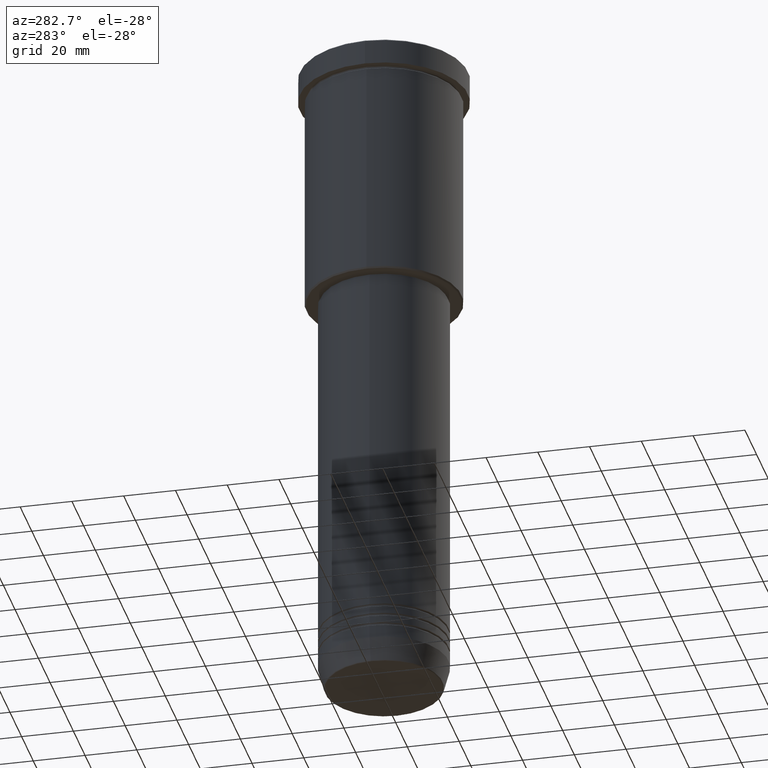
[diagram: clean part render]
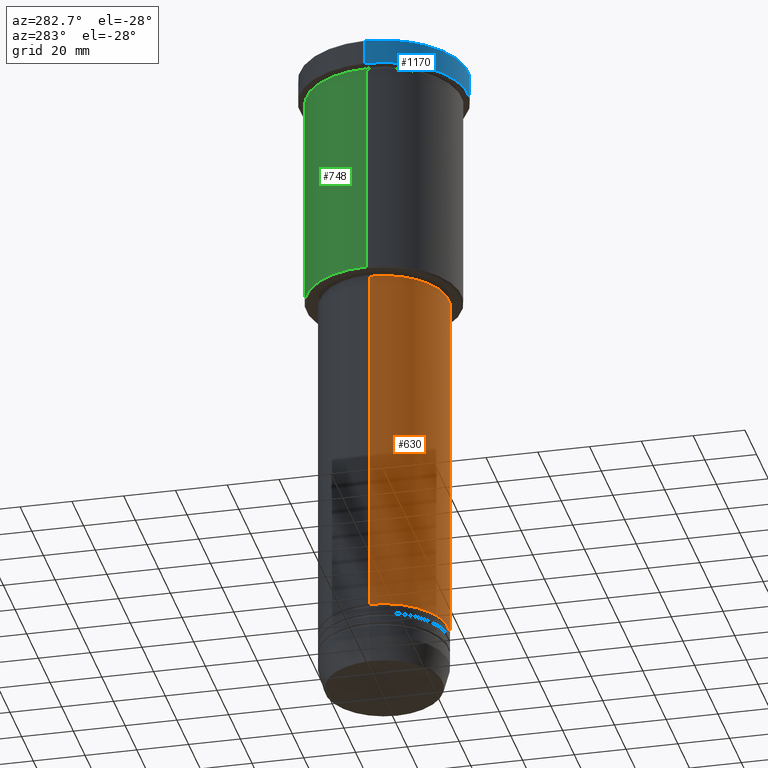
[diagram: same view with three faces highlighted in distinct colors, each labeled with its STEP entity id]
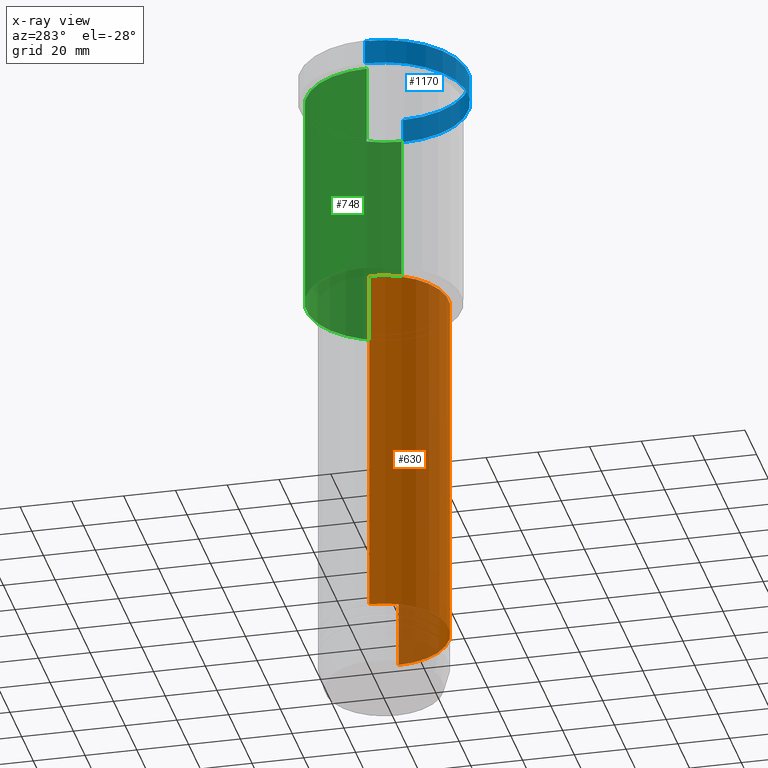
[diagram: x-ray of the same camera — body ghosted, the three highlighted faces saturated]
A machine part, auxiliary view with three faces highlighted in distinct colors.
The next image is the same camera in x-ray (body ghosted, the three faces saturated) — at least one of them is partly hidden behind the body in this view.
Their STEP definitions:

[orange] entity #630 — the highlighted cylindrical surface (partial cylindrical patch) has radius 25 mm, axis along (-0, -0, 1).
#15 = AXIS2_PLACEMENT_3D ( 'NONE', #860, #137, #49 ) ;
#29 = CARTESIAN_POINT ( 'NONE',  ( 0.000000000000000000, 0.000000000000000000, 0.000000000000000000 ) ) ;
#36 = DIRECTION ( 'NONE',  ( -0.000000000000000000, -0.000000000000000000, 1.000000000000000000 ) ) ;
#44 = CYLINDRICAL_SURFACE ( 'NONE', #537, 25.00000000000000355 ) ;
#46 = EDGE_CURVE ( 'NONE', #472, #724, #1032, .T. ) ;
#49 = DIRECTION ( 'NONE',  ( 1.000000000000000000, 0.000000000000000000, 0.000000000000000000 ) ) ;
#82 = DIRECTION ( 'NONE',  ( -0.000000000000000000, -0.000000000000000000, 1.000000000000000000 ) ) ;
#95 = CARTESIAN_POINT ( 'NONE',  ( -25.00000000000001066, 3.061616997868384226E-15, -97.00000000000002842 ) ) ;
#121 = CARTESIAN_POINT ( 'NONE',  ( 25.00000000000000355, 0.000000000000000000, 0.000000000000000000 ) ) ;
#123 = VERTEX_POINT ( 'NONE', #204 ) ;
#137 = DIRECTION ( 'NONE',  ( -0.000000000000000000, -0.000000000000000000, 1.000000000000000000 ) ) ;
#155 = ORIENTED_EDGE ( 'NONE', *, *, #744, .T. ) ;
#204 = CARTESIAN_POINT ( 'NONE',  ( -25.00000000000000000, 3.061616997868383437E-15, -237.0000000000000000 ) ) ;
#225 = CARTESIAN_POINT ( 'NONE',  ( 25.00000000000000711, 0.000000000000000000, -97.00000000000002842 ) ) ;
#231 = DIRECTION ( 'NONE',  ( 1.000000000000000000, 0.000000000000000000, 0.000000000000000000 ) ) ;
#232 = DIRECTION ( 'NONE',  ( -0.000000000000000000, -0.000000000000000000, 1.000000000000000000 ) ) ;
#266 = CARTESIAN_POINT ( 'NONE',  ( 0.000000000000000000, 0.000000000000000000, -97.00000000000002842 ) ) ;
#296 = CARTESIAN_POINT ( 'NONE',  ( 25.00000000000000000, 0.000000000000000000, -237.0000000000000000 ) ) ;
#397 = DIRECTION ( 'NONE',  ( -0.000000000000000000, -0.000000000000000000, 1.000000000000000000 ) ) ;
#430 = VERTEX_POINT ( 'NONE', #296 ) ;
#456 = DIRECTION ( 'NONE',  ( 1.000000000000000000, 0.000000000000000000, 0.000000000000000000 ) ) ;
#472 = VERTEX_POINT ( 'NONE', #95 ) ;
#511 = LINE ( 'NONE', #516, #1162 ) ;
#516 = CARTESIAN_POINT ( 'NONE',  ( -25.00000000000000355, 3.061616997868383437E-15, 0.000000000000000000 ) ) ;
#537 = AXIS2_PLACEMENT_3D ( 'NONE', #29, #36, #231 ) ;
#550 = ORIENTED_EDGE ( 'NONE', *, *, #717, .T. ) ;
#569 = ORIENTED_EDGE ( 'NONE', *, *, #1102, .F. ) ;
#577 = VECTOR ( 'NONE', #397, 1000.000000000000000 ) ;
#580 = AXIS2_PLACEMENT_3D ( 'NONE', #266, #82, #456 ) ;
#603 = LINE ( 'NONE', #121, #577 ) ;
#630 = ADVANCED_FACE ( 'NONE', ( #873 ), #44, .T. ) ;
#717 = EDGE_CURVE ( 'NONE', #123, #430, #755, .T. ) ;
#724 = VERTEX_POINT ( 'NONE', #225 ) ;
#744 = EDGE_CURVE ( 'NONE', #430, #724, #603, .T. ) ;
#755 = CIRCLE ( 'NONE', #15, 25.00000000000000000 ) ;
#860 = CARTESIAN_POINT ( 'NONE',  ( 0.000000000000000000, 0.000000000000000000, -237.0000000000000000 ) ) ;
#873 = FACE_OUTER_BOUND ( 'NONE', #1035, .T. ) ;
#1032 = CIRCLE ( 'NONE', #580, 25.00000000000000711 ) ;
#1035 = EDGE_LOOP ( 'NONE', ( #569, #550, #155, #1068 ) ) ;
#1068 = ORIENTED_EDGE ( 'NONE', *, *, #46, .F. ) ;
#1102 = EDGE_CURVE ( 'NONE', #123, #472, #511, .T. ) ;
#1162 = VECTOR ( 'NONE', #232, 1000.000000000000000 ) ;

[blue] entity #1170 — the highlighted cylindrical surface (partial cylindrical patch) has radius 32.5 mm, axis along (-0, -0, 1).
#5 = EDGE_CURVE ( 'NONE', #65, #69, #915, .T. ) ;
#10 = VERTEX_POINT ( 'NONE', #738 ) ;
#52 = ORIENTED_EDGE ( 'NONE', *, *, #492, .T. ) ;
#65 = VERTEX_POINT ( 'NONE', #186 ) ;
#69 = VERTEX_POINT ( 'NONE', #379 ) ;
#105 = VECTOR ( 'NONE', #1021, 1000.000000000000000 ) ;
#154 = CYLINDRICAL_SURFACE ( 'NONE', #304, 32.50000000000000000 ) ;
#165 = VERTEX_POINT ( 'NONE', #512 ) ;
#186 = CARTESIAN_POINT ( 'NONE',  ( 32.50000000000000000, 0.000000000000000000, -9.999999999999992895 ) ) ;
#215 = EDGE_LOOP ( 'NONE', ( #1153, #933, #254, #52 ) ) ;
#254 = ORIENTED_EDGE ( 'NONE', *, *, #5, .T. ) ;
#257 = DIRECTION ( 'NONE',  ( -0.000000000000000000, -0.000000000000000000, 1.000000000000000000 ) ) ;
#304 = AXIS2_PLACEMENT_3D ( 'NONE', #356, #1160, #437 ) ;
#356 = CARTESIAN_POINT ( 'NONE',  ( 0.000000000000000000, 0.000000000000000000, 0.000000000000000000 ) ) ;
#372 = LINE ( 'NONE', #585, #105 ) ;
#377 = CARTESIAN_POINT ( 'NONE',  ( 0.000000000000000000, 0.000000000000000000, -0.4999999999999726885 ) ) ;
#379 = CARTESIAN_POINT ( 'NONE',  ( 32.50000000000000000, 0.000000000000000000, -0.4999999999999726885 ) ) ;
#433 = EDGE_CURVE ( 'NONE', #165, #10, #372, .T. ) ;
#437 = DIRECTION ( 'NONE',  ( 1.000000000000000000, 0.000000000000000000, 0.000000000000000000 ) ) ;
#441 = AXIS2_PLACEMENT_3D ( 'NONE', #377, #468, #1099 ) ;
#468 = DIRECTION ( 'NONE',  ( 0.000000000000000000, 0.000000000000000000, -1.000000000000000000 ) ) ;
#492 = EDGE_CURVE ( 'NONE', #69, #10, #775, .T. ) ;
#512 = CARTESIAN_POINT ( 'NONE',  ( -32.50000000000000000, 3.980102097228898626E-15, -9.999999999999992895 ) ) ;
#585 = CARTESIAN_POINT ( 'NONE',  ( -32.50000000000000000, 3.980102097228898626E-15, 0.000000000000000000 ) ) ;
#600 = EDGE_CURVE ( 'NONE', #165, #65, #1145, .T. ) ;
#632 = AXIS2_PLACEMENT_3D ( 'NONE', #1053, #714, #865 ) ;
#714 = DIRECTION ( 'NONE',  ( -0.000000000000000000, -0.000000000000000000, 1.000000000000000000 ) ) ;
#723 = VECTOR ( 'NONE', #257, 1000.000000000000000 ) ;
#738 = CARTESIAN_POINT ( 'NONE',  ( -32.50000000000000000, 3.980102097228898626E-15, -0.4999999999999726885 ) ) ;
#775 = CIRCLE ( 'NONE', #441, 32.50000000000000000 ) ;
#822 = CARTESIAN_POINT ( 'NONE',  ( 32.50000000000000000, 0.000000000000000000, 0.000000000000000000 ) ) ;
#865 = DIRECTION ( 'NONE',  ( 1.000000000000000000, 0.000000000000000000, 0.000000000000000000 ) ) ;
#915 = LINE ( 'NONE', #822, #723 ) ;
#933 = ORIENTED_EDGE ( 'NONE', *, *, #600, .T. ) ;
#1021 = DIRECTION ( 'NONE',  ( -0.000000000000000000, -0.000000000000000000, 1.000000000000000000 ) ) ;
#1053 = CARTESIAN_POINT ( 'NONE',  ( 0.000000000000000000, 0.000000000000000000, -9.999999999999992895 ) ) ;
#1099 = DIRECTION ( 'NONE',  ( 1.000000000000000000, 0.000000000000000000, 0.000000000000000000 ) ) ;
#1145 = CIRCLE ( 'NONE', #632, 32.50000000000000000 ) ;
#1153 = ORIENTED_EDGE ( 'NONE', *, *, #433, .F. ) ;
#1160 = DIRECTION ( 'NONE',  ( -0.000000000000000000, -0.000000000000000000, 1.000000000000000000 ) ) ;
#1169 = FACE_OUTER_BOUND ( 'NONE', #215, .T. ) ;
#1170 = ADVANCED_FACE ( 'NONE', ( #1169 ), #154, .T. ) ;

[green] entity #748 — the highlighted cylindrical surface (partial cylindrical patch) has radius 30 mm, axis along (-0, -0, 1).
#28 = DIRECTION ( 'NONE',  ( 1.000000000000000000, 0.000000000000000000, 0.000000000000000000 ) ) ;
#30 = CARTESIAN_POINT ( 'NONE',  ( 30.00000000000000000, 0.000000000000000000, 0.000000000000000000 ) ) ;
#57 = CARTESIAN_POINT ( 'NONE',  ( -30.00000000000000000, 3.673940397442059178E-15, -10.99999999999999289 ) ) ;
#60 = EDGE_CURVE ( 'NONE', #612, #681, #371, .T. ) ;
#139 = DIRECTION ( 'NONE',  ( -0.000000000000000000, -0.000000000000000000, 1.000000000000000000 ) ) ;
#149 = AXIS2_PLACEMENT_3D ( 'NONE', #786, #1119, #28 ) ;
#170 = AXIS2_PLACEMENT_3D ( 'NONE', #1008, #446, #911 ) ;
#214 = FACE_OUTER_BOUND ( 'NONE', #639, .T. ) ;
#271 = EDGE_CURVE ( 'NONE', #975, #681, #479, .T. ) ;
#313 = CARTESIAN_POINT ( 'NONE',  ( -30.00000000000000000, 3.673940397442059178E-15, -95.50000000000002842 ) ) ;
#370 = EDGE_CURVE ( 'NONE', #518, #612, #706, .T. ) ;
#371 = LINE ( 'NONE', #841, #942 ) ;
#398 = CARTESIAN_POINT ( 'NONE',  ( 30.00000000000000000, 0.000000000000000000, -95.50000000000002842 ) ) ;
#446 = DIRECTION ( 'NONE',  ( -0.000000000000000000, -0.000000000000000000, 1.000000000000000000 ) ) ;
#447 = ORIENTED_EDGE ( 'NONE', *, *, #370, .T. ) ;
#479 = CIRCLE ( 'NONE', #753, 30.00000000000000000 ) ;
#518 = VERTEX_POINT ( 'NONE', #398 ) ;
#551 = ORIENTED_EDGE ( 'NONE', *, *, #1093, .F. ) ;
#554 = ORIENTED_EDGE ( 'NONE', *, *, #271, .F. ) ;
#612 = VERTEX_POINT ( 'NONE', #313 ) ;
#639 = EDGE_LOOP ( 'NONE', ( #447, #640, #554, #551 ) ) ;
#640 = ORIENTED_EDGE ( 'NONE', *, *, #60, .T. ) ;
#648 = DIRECTION ( 'NONE',  ( -0.000000000000000000, -0.000000000000000000, 1.000000000000000000 ) ) ;
#674 = CYLINDRICAL_SURFACE ( 'NONE', #149, 30.00000000000000000 ) ;
#681 = VERTEX_POINT ( 'NONE', #57 ) ;
#706 = CIRCLE ( 'NONE', #170, 30.00000000000000000 ) ;
#748 = ADVANCED_FACE ( 'NONE', ( #214 ), #674, .T. ) ;
#753 = AXIS2_PLACEMENT_3D ( 'NONE', #1096, #903, #1177 ) ;
#761 = CARTESIAN_POINT ( 'NONE',  ( 30.00000000000000000, 0.000000000000000000, -10.99999999999999289 ) ) ;
#786 = CARTESIAN_POINT ( 'NONE',  ( 0.000000000000000000, 0.000000000000000000, 0.000000000000000000 ) ) ;
#841 = CARTESIAN_POINT ( 'NONE',  ( -30.00000000000000000, 3.673940397442059178E-15, 0.000000000000000000 ) ) ;
#903 = DIRECTION ( 'NONE',  ( -0.000000000000000000, -0.000000000000000000, 1.000000000000000000 ) ) ;
#911 = DIRECTION ( 'NONE',  ( -1.000000000000000000, 0.000000000000000000, 0.000000000000000000 ) ) ;
#942 = VECTOR ( 'NONE', #648, 1000.000000000000000 ) ;
#975 = VERTEX_POINT ( 'NONE', #761 ) ;
#1008 = CARTESIAN_POINT ( 'NONE',  ( 0.000000000000000000, 0.000000000000000000, -95.50000000000002842 ) ) ;
#1093 = EDGE_CURVE ( 'NONE', #518, #975, #1131, .T. ) ;
#1096 = CARTESIAN_POINT ( 'NONE',  ( 0.000000000000000000, 0.000000000000000000, -10.99999999999999289 ) ) ;
#1119 = DIRECTION ( 'NONE',  ( -0.000000000000000000, -0.000000000000000000, 1.000000000000000000 ) ) ;
#1127 = VECTOR ( 'NONE', #139, 1000.000000000000000 ) ;
#1131 = LINE ( 'NONE', #30, #1127 ) ;
#1177 = DIRECTION ( 'NONE',  ( 1.000000000000000000, 0.000000000000000000, 0.000000000000000000 ) ) ;